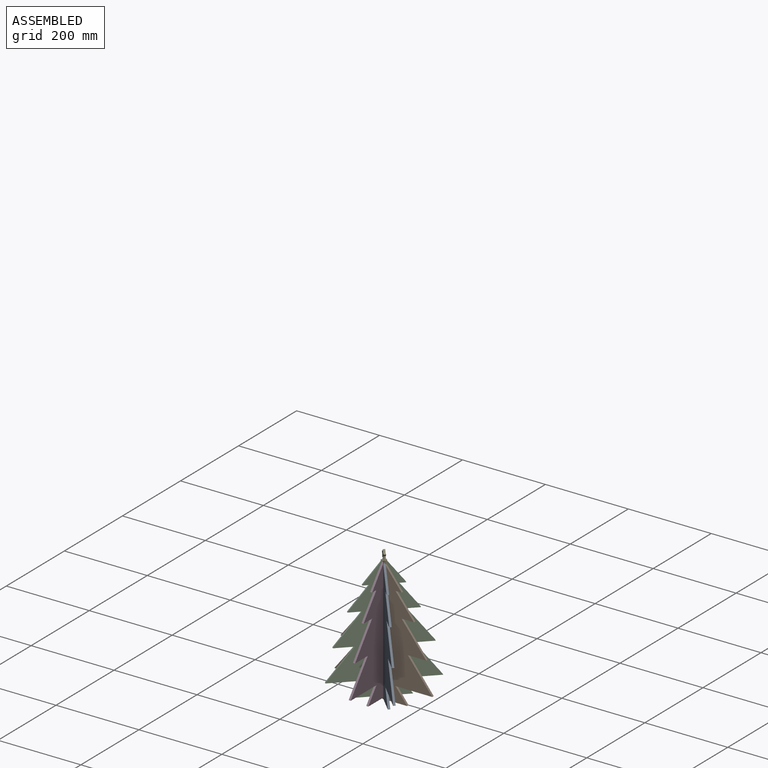
[diagram: assembled view]
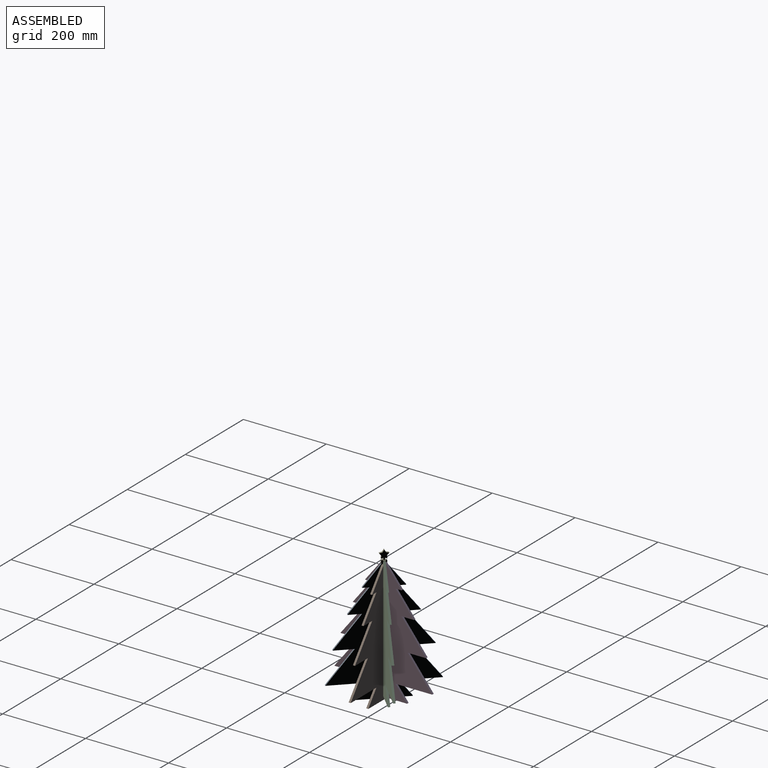
[diagram: assembled view, second angle]
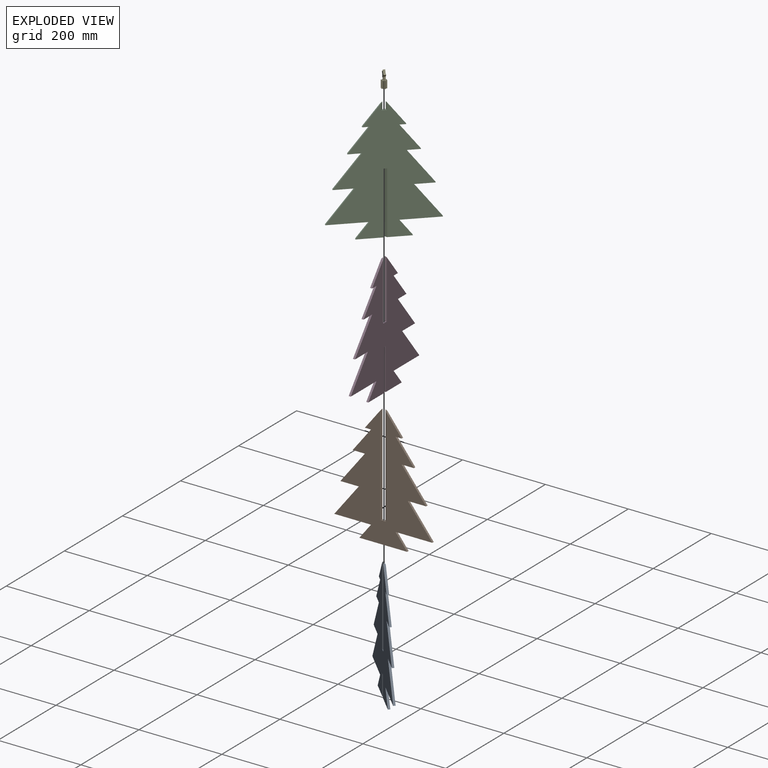
[diagram: exploded view]
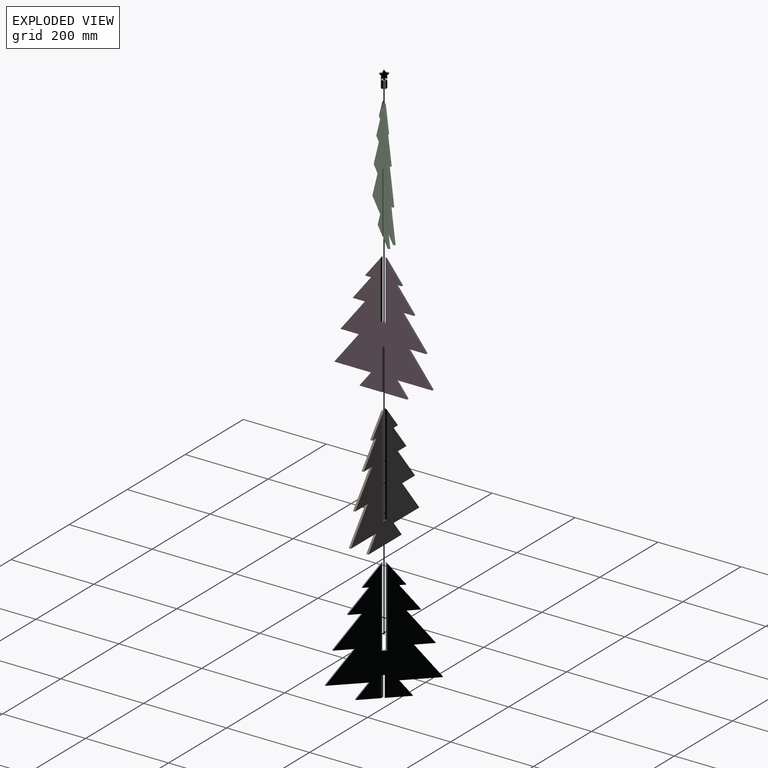
[diagram: exploded view, second angle]
ASSEMBLY  parts=5 mates=4
PART A: 30 faces, bbox 236.3x5x295.4 mm
  f0: plane 56.57x5mm, normal (0,0,-1), area 270.3mm2, adj f1,f14,f21,f28
  f1: plane 292.2x236.33mm, normal (0,-1,0), area 33285.2mm2, adj f0,f2,f3,f4,f5,f6,f7,f8
  f2: plane 14.77x5mm, normal (0,0,-1), area 73.9mm2, adj f1,f3,f20,f21
  f3: plane 51.98x40.71mm, normal (0.79,0,0.62), area 320mm2, adj f1,f2,f21,f25,f26
  f4: plane 51.98x40.71mm, normal (-0.79,0,0.62), area 320mm2, adj f1,f5,f21,f23,f24
  f5: plane 14.77x5mm, normal (0,0,-1), area 73.9mm2, adj f1,f4,f6,f21
  f6: plane 56.59x44.31mm, normal (-0.79,0,0.62), area 359.4mm2, adj f1,f5,f7,f21
  f7: plane 29.54x5mm, normal (0,0,-1), area 147.7mm2, adj f1,f6,f8,f21
  f8: plane 75.45x59.08mm, normal (-0.79,0,0.62), area 479.2mm2, adj f1,f7,f9,f21
  f9: plane 44.31x5mm, normal (0,0,-1), area 221.6mm2, adj f1,f8,f10,f21
  f10: plane 75.45x59.08mm, normal (-0.79,0,0.62), area 479.2mm2, adj f1,f9,f11,f21
  f11: plane 88.63x5mm, normal (0,0,-1), area 443.1mm2, adj f1,f10,f12,f21
  f12: plane 35.93x28.13mm, normal (-0.79,0,0.62), area 228.1mm2, adj f1,f11,f13,f21
  f13: plane 56.57x5mm, normal (0,0,-1), area 270.3mm2, adj f1,f12,f21,f27
  f14: plane 35.93x28.13mm, normal (0.79,0,0.62), area 228.1mm2, adj f0,f1,f15,f21
  f15: plane 88.63x5mm, normal (0,0,-1), area 443.1mm2, adj f1,f14,f16,f21
  f16: plane 75.45x59.08mm, normal (0.79,0,0.62), area 479.2mm2, adj f1,f15,f17,f21
  f17: plane 44.31x5mm, normal (0,0,-1), area 221.6mm2, adj f1,f16,f18,f21
  f18: plane 75.45x59.08mm, normal (0.79,0,0.62), area 479.2mm2, adj f1,f17,f19,f21
  f19: plane 29.54x5mm, normal (0,0,-1), area 147.7mm2, adj f1,f18,f20,f21
  f20: plane 56.59x44.31mm, normal (0.79,0,0.62), area 359.4mm2, adj f1,f2,f19,f21
  f21: plane 292.2x236.33mm, normal (0,1,0), area 33285.2mm2, adj f0,f2,f3,f4,f5,f6,f7,f8
  f22: plane 12.21x5mm, normal (0,0,1), area 48.6mm2, adj f1,f21,f23,f24,f25,f26
  f23: plane 192.86x2.5mm, normal (0.71,0.71,0), area 676.2mm2, adj f4,f21,f22,f24
  f24: plane 192.86x2.5mm, normal (0.71,-0.71,0), area 676.2mm2, adj f1,f4,f22,f23
  f25: plane 192.85x2.5mm, normal (-0.71,-0.71,0), area 676.2mm2, adj f1,f3,f22,f26
  f26: plane 192.85x2.5mm, normal (-0.71,0.71,0), area 676.2mm2, adj f3,f21,f22,f25
  f27: plane 50x5mm, normal (0.71,-0.71,0), area 353.6mm2, adj f1,f13,f21,f29
  f28: plane 50x5mm, normal (-0.71,0.71,0), area 353.6mm2, adj f0,f1,f21,f29
  f29: plane 12.21x5mm, normal (0,0,-1), area 36.1mm2, adj f1,f21,f27,f28
PART B: 26 faces, bbox 236.3x5x295.4 mm
  f0: plane 51.98x40.71mm, normal (0.79,0,0.62), area 320mm2, adj f1,f2,f3,f22,f23
  f1: plane 292.2x236.33mm, normal (0,-1,0), area 33035.2mm2, adj f0,f3,f4,f5,f6,f7,f8,f9
  f2: plane 292.2x236.33mm, normal (0,1,0), area 33035.2mm2, adj f0,f3,f4,f5,f6,f7,f8,f9
  f3: plane 14.77x5mm, normal (0,0,-1), area 73.9mm2, adj f0,f1,f2,f20
  f4: plane 51.98x40.71mm, normal (-0.79,0,0.62), area 320mm2, adj f1,f2,f5,f24,f25
  f5: plane 14.77x5mm, normal (0,0,-1), area 73.9mm2, adj f1,f2,f4,f6
  f6: plane 56.59x44.31mm, normal (-0.79,0,0.62), area 359.4mm2, adj f1,f2,f5,f7
  f7: plane 29.54x5mm, normal (0,0,-1), area 147.7mm2, adj f1,f2,f6,f8
  f8: plane 75.45x59.08mm, normal (-0.79,0,0.62), area 479.2mm2, adj f1,f2,f7,f9
  f9: plane 44.31x5mm, normal (0,0,-1), area 221.6mm2, adj f1,f2,f8,f10
  f10: plane 75.45x59.08mm, normal (-0.79,0,0.62), area 479.2mm2, adj f1,f2,f9,f11
  f11: plane 88.63x5mm, normal (0,0,-1), area 443.1mm2, adj f1,f2,f10,f12
  f12: plane 35.93x28.13mm, normal (-0.79,0,0.62), area 228.1mm2, adj f1,f2,f11,f13
  f13: plane 115.35x5mm, normal (0,0,-1), area 576.7mm2, adj f1,f2,f12,f14
  f14: plane 35.93x28.13mm, normal (0.79,0,0.62), area 228.1mm2, adj f1,f2,f13,f15
  f15: plane 88.63x5mm, normal (0,0,-1), area 443.1mm2, adj f1,f2,f14,f16
  f16: plane 75.45x59.08mm, normal (0.79,0,0.62), area 479.2mm2, adj f1,f2,f15,f17
  f17: plane 44.31x5mm, normal (0,0,-1), area 221.6mm2, adj f1,f2,f16,f18
  f18: plane 75.45x59.08mm, normal (0.79,0,0.62), area 479.2mm2, adj f1,f2,f17,f19
  f19: plane 29.54x5mm, normal (0,0,-1), area 147.7mm2, adj f1,f2,f18,f20
  f20: plane 56.59x44.31mm, normal (0.79,0,0.62), area 359.4mm2, adj f1,f2,f3,f19
  f21: plane 12.21x5mm, normal (0,0,1), area 48.6mm2, adj f1,f2,f22,f23,f24,f25
  f22: plane 242.85x2.5mm, normal (-0.71,-0.71,0), area 853mm2, adj f0,f1,f21,f23
  f23: plane 242.85x2.5mm, normal (-0.71,0.71,0), area 853mm2, adj f0,f2,f21,f22
  f24: plane 242.86x2.5mm, normal (0.71,0.71,0), area 853mm2, adj f2,f4,f21,f25
  f25: plane 242.86x2.5mm, normal (0.71,-0.71,0), area 853mm2, adj f1,f4,f21,f24
PART C: 30 faces, bbox 236.3x5x295.4 mm
  f0: plane 56.57x5mm, normal (0,0,-1), area 270.3mm2, adj f2,f3,f14,f27
  f1: plane 56.57x5mm, normal (0,0,-1), area 270.3mm2, adj f2,f3,f15,f28
  f2: plane 292.2x236.33mm, normal (0,-1,0), area 34701.1mm2, adj f0,f1,f4,f5,f6,f7,f8,f9
  f3: plane 292.2x236.33mm, normal (0,1,0), area 34701.1mm2, adj f0,f1,f4,f5,f6,f7,f8,f9
  f4: plane 14.77x5mm, normal (0,0,-1), area 73.9mm2, adj f2,f3,f5,f21
  f5: plane 51.98x40.71mm, normal (0.79,0,0.62), area 320mm2, adj f2,f3,f4,f25,f26
  f6: plane 51.98x40.71mm, normal (-0.79,0,0.62), area 320mm2, adj f2,f3,f7,f23,f24
  f7: plane 14.77x5mm, normal (0,0,-1), area 73.9mm2, adj f2,f3,f6,f8
  f8: plane 56.59x44.31mm, normal (-0.79,0,0.62), area 359.4mm2, adj f2,f3,f7,f9
  f9: plane 29.54x5mm, normal (0,0,-1), area 147.7mm2, adj f2,f3,f8,f10
  f10: plane 75.45x59.08mm, normal (-0.79,0,0.62), area 479.2mm2, adj f2,f3,f9,f11
  f11: plane 44.31x5mm, normal (0,0,-1), area 221.6mm2, adj f2,f3,f10,f12
  f12: plane 75.45x59.08mm, normal (-0.79,0,0.62), area 479.2mm2, adj f2,f3,f11,f13
  f13: plane 88.63x5mm, normal (0,0,-1), area 443.1mm2, adj f2,f3,f12,f14
  f14: plane 35.93x28.13mm, normal (-0.79,0,0.62), area 228.1mm2, adj f0,f2,f3,f13
  f15: plane 35.93x28.13mm, normal (0.79,0,0.62), area 228.1mm2, adj f1,f2,f3,f16
  f16: plane 88.63x5mm, normal (0,0,-1), area 443.1mm2, adj f2,f3,f15,f17
  f17: plane 75.45x59.08mm, normal (0.79,0,0.62), area 479.2mm2, adj f2,f3,f16,f18
  f18: plane 44.31x5mm, normal (0,0,-1), area 221.6mm2, adj f2,f3,f17,f19
  f19: plane 75.45x59.08mm, normal (0.79,0,0.62), area 479.2mm2, adj f2,f3,f18,f20
  f20: plane 29.54x5mm, normal (0,0,-1), area 147.7mm2, adj f2,f3,f19,f21
  f21: plane 56.59x44.31mm, normal (0.79,0,0.62), area 359.4mm2, adj f2,f3,f4,f20
  f22: plane 12.21x5mm, normal (0,0,1), area 48.6mm2, adj f2,f3,f23,f24,f25,f26
  f23: plane 17.86x2.5mm, normal (0.71,0.71,0), area 57.5mm2, adj f3,f6,f22,f24
  f24: plane 17.86x2.5mm, normal (0.71,-0.71,0), area 57.5mm2, adj f2,f6,f22,f23
  f25: plane 17.85x2.5mm, normal (-0.71,-0.71,0), area 57.5mm2, adj f2,f5,f22,f26
  f26: plane 17.85x2.5mm, normal (-0.71,0.71,0), area 57.5mm2, adj f3,f5,f22,f25
  f27: plane 150x5mm, normal (0.71,0.71,0), area 1060.7mm2, adj f0,f2,f3,f29
  f28: plane 150x5mm, normal (-0.71,-0.71,0), area 1060.7mm2, adj f1,f2,f3,f29
  f29: plane 12.21x5mm, normal (0,0,-1), area 36.1mm2, adj f2,f3,f27,f28
PART D: 30 faces, bbox 236.3x5x295.4 mm
  f0: plane 55.12x5mm, normal (0,0,-1), area 275.6mm2, adj f1,f12,f21,f27
  f1: plane 292.2x236.33mm, normal (0,-1,0), area 33746.5mm2, adj f0,f2,f3,f4,f5,f6,f7,f8
  f2: plane 14.77x5mm, normal (0,0,-1), area 73.9mm2, adj f1,f3,f20,f21
  f3: plane 51.98x40.71mm, normal (0.79,0,0.62), area 320mm2, adj f1,f2,f21,f25,f26
  f4: plane 51.98x40.71mm, normal (-0.79,0,0.62), area 320mm2, adj f1,f5,f21,f23,f24
  f5: plane 14.77x5mm, normal (0,0,-1), area 73.9mm2, adj f1,f4,f6,f21
  f6: plane 56.59x44.31mm, normal (-0.79,0,0.62), area 359.4mm2, adj f1,f5,f7,f21
  f7: plane 29.54x5mm, normal (0,0,-1), area 147.7mm2, adj f1,f6,f8,f21
  f8: plane 75.45x59.08mm, normal (-0.79,0,0.62), area 479.2mm2, adj f1,f7,f9,f21
  f9: plane 44.31x5mm, normal (0,0,-1), area 221.6mm2, adj f1,f8,f10,f21
  f10: plane 75.45x59.08mm, normal (-0.79,0,0.62), area 479.2mm2, adj f1,f9,f11,f21
  f11: plane 88.63x5mm, normal (0,0,-1), area 443.1mm2, adj f1,f10,f12,f21
  f12: plane 35.93x28.13mm, normal (-0.79,0,0.62), area 228.1mm2, adj f0,f1,f11,f21
  f13: plane 55.12x5mm, normal (0,0,-1), area 275.6mm2, adj f1,f14,f21,f28
  f14: plane 35.93x28.13mm, normal (0.79,0,0.62), area 228.1mm2, adj f1,f13,f15,f21
  f15: plane 88.63x5mm, normal (0,0,-1), area 443.1mm2, adj f1,f14,f16,f21
  f16: plane 75.45x59.08mm, normal (0.79,0,0.62), area 479.2mm2, adj f1,f15,f17,f21
  f17: plane 44.31x5mm, normal (0,0,-1), area 221.6mm2, adj f1,f16,f18,f21
  f18: plane 75.45x59.08mm, normal (0.79,0,0.62), area 479.2mm2, adj f1,f17,f19,f21
  f19: plane 29.54x5mm, normal (0,0,-1), area 147.7mm2, adj f1,f18,f20,f21
  f20: plane 56.59x44.31mm, normal (0.79,0,0.62), area 359.4mm2, adj f1,f2,f19,f21
  f21: plane 292.2x236.33mm, normal (0,1,0), area 33746.5mm2, adj f0,f2,f3,f4,f5,f6,f7,f8
  f22: plane 12.21x5mm, normal (0,0,1), area 48.6mm2, adj f1,f21,f23,f24,f25,f26
  f23: plane 142.86x2.5mm, normal (0.71,0.71,0), area 499.4mm2, adj f4,f21,f22,f24
  f24: plane 142.86x2.5mm, normal (0.71,-0.71,0), area 499.4mm2, adj f1,f4,f22,f23
  f25: plane 142.85x2.5mm, normal (-0.71,-0.71,0), area 499.4mm2, adj f1,f3,f22,f26
  f26: plane 142.85x2.5mm, normal (-0.71,0.71,0), area 499.4mm2, adj f3,f21,f22,f25
  f27: plane 100x5mm, normal (1,0,0), area 500mm2, adj f0,f1,f21,f29
  f28: plane 100x5mm, normal (-1,0,0), area 500mm2, adj f1,f13,f21,f29
  f29: plane 5.1x5mm, normal (0,0,-1), area 25.5mm2, adj f1,f21,f27,f28
PART E: 35 faces, bbox 20.7x12.1x40.6 mm
  f0: cylinder r=2.5mm len=5mm, axis (0,0,-1), area 76.1mm2, adj f17,f19,f20,f21,f24,f25,f26
  f1: plane 18x3.54mm, normal (0,-1,0), area 63.6mm2, adj f2,f16,f17,f18
  f2: plane 18x3.54mm, normal (-1,0,0), area 63.6mm2, adj f1,f3,f17,f18
  f3: plane 18x2.5mm, normal (0.71,-0.71,0), area 63.6mm2, adj f2,f4,f17,f18
  f4: plane 18x2.5mm, normal (-0.71,-0.71,0), area 63.6mm2, adj f3,f5,f17,f18
  f5: plane 18x3.54mm, normal (1,0,0), area 63.6mm2, adj f4,f6,f17,f18
  f6: plane 18x3.54mm, normal (0,-1,0), area 63.6mm2, adj f5,f7,f17,f18
  f7: plane 18x2.5mm, normal (0.71,0.71,0), area 63.6mm2, adj f6,f8,f17,f18
  f8: plane 18x2.5mm, normal (0.71,-0.71,0), area 63.6mm2, adj f7,f9,f17,f18
  f9: plane 18x3.54mm, normal (0,1,0), area 63.6mm2, adj f8,f10,f17,f18
  f10: plane 18x3.54mm, normal (1,0,0), area 63.6mm2, adj f9,f11,f17,f18
  f11: plane 18x2.5mm, normal (-0.71,0.71,0), area 63.6mm2, adj f10,f12,f17,f18
  f12: plane 18x2.5mm, normal (0.71,0.71,0), area 63.6mm2, adj f11,f13,f17,f18
  f13: plane 18x3.54mm, normal (-1,0,0), area 63.6mm2, adj f12,f14,f17,f18
  f14: plane 18x3.54mm, normal (0,1,0), area 63.6mm2, adj f13,f15,f17,f18
  f15: plane 18x2.5mm, normal (-0.71,-0.71,0), area 63.6mm2, adj f14,f16,f17,f18
  f16: plane 18x2.5mm, normal (-0.71,0.71,0), area 63.6mm2, adj f1,f15,f17,f18
  f17: plane 12.07x12.07mm, normal (0,0,1), area 51.1mm2, adj f0,f1,f2,f3,f4,f5,f6,f7
  f18: plane 12.07x12.07mm, normal (0,0,-1), area 70.7mm2, adj f1,f2,f3,f4,f5,f6,f7,f8
  f19: plane 2x1mm, normal (0,0,-1), area 0.6mm2, adj f0,f26,f34
  f20: plane 2x1mm, normal (0,0,-1), area 0.6mm2, adj f0,f24,f34
  f21: plane 2x1mm, normal (0,0,-1), area 0.6mm2, adj f0,f24,f33
  f22: plane 5.2x5mm, normal (-0.74,0,-0.67), area 35mm2, adj f23,f32,f33,f34
  f23: plane 6.96x5mm, normal (-0.99,0,0.1), area 35mm2, adj f22,f24,f33,f34
  f24: plane 5x4.4mm, normal (0.41,0,-0.91), area 22.9mm2, adj f0,f20,f21,f23,f33,f34
  f25: plane 2x1mm, normal (0,0,-1), area 0.6mm2, adj f0,f26,f33
  f26: plane 5x4.4mm, normal (-0.41,0,-0.91), area 22.9mm2, adj f0,f19,f25,f27,f33,f34
  f27: plane 6.96x5mm, normal (0.99,0,0.1), area 35mm2, adj f26,f28,f33,f34
  f28: plane 5.2x5mm, normal (0.74,0,-0.67), area 35mm2, adj f27,f29,f33,f34
  f29: plane 6.85x5mm, normal (0.21,0,0.98), area 35mm2, adj f28,f30,f33,f34
  f30: plane 6.06x5mm, normal (0.87,0,0.5), area 35mm2, adj f29,f31,f33,f34
  f31: plane 6.06x5mm, normal (-0.87,0,0.5), area 35mm2, adj f30,f32,f33,f34
  f32: plane 6.85x5mm, normal (-0.21,0,0.98), area 35mm2, adj f22,f31,f33,f34
  f33: plane 20.69x19.68mm, normal (0,-1,0), area 192.2mm2, adj f21,f22,f23,f24,f25,f26,f27,f28
  f34: plane 20.69x19.68mm, normal (0,1,0), area 192.2mm2, adj f19,f20,f22,f23,f24,f26,f27,f28
PLACE A rot(axis=(0,0,-1),45deg) t=(-63.43,-26.59,23.9)mm
PLACE B t=(-59.75,-12.72,21.36)mm fixed
PLACE C rot(axis=(0,0,1),45deg) t=(-66.96,-0.31,28.98)mm
PLACE D rot(axis=(0,0,1),90deg) t=(-80.83,3.37,26.44)mm
PLACE E rot(axis=(0,0,-1),45deg) t=(-78.33,-15.22,182.48)mm
MATE revolute D.f22 <-> C.f29  axis (0,0,1) through (-78.33,-15.22,54.94)mm
MATE revolute E.f0 <-> C.f22  axis (0,0,-1) through (-78.33,-15.22,182.48)mm
MATE revolute D.f29 <-> A.f22  axis (0,0,-1) through (-78.33,-15.22,2.4)mm
MATE revolute B.f21 <-> A.f29  axis (0,0,1) through (-78.33,-15.22,-50.14)mm
